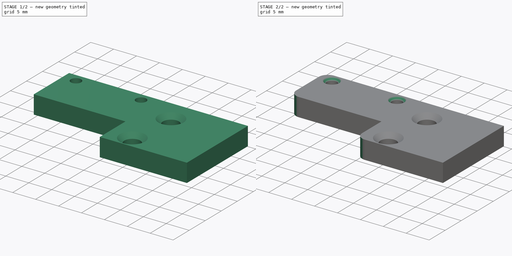
[diagram: build sequence overview — one tinted view per stage of 2, left to right]
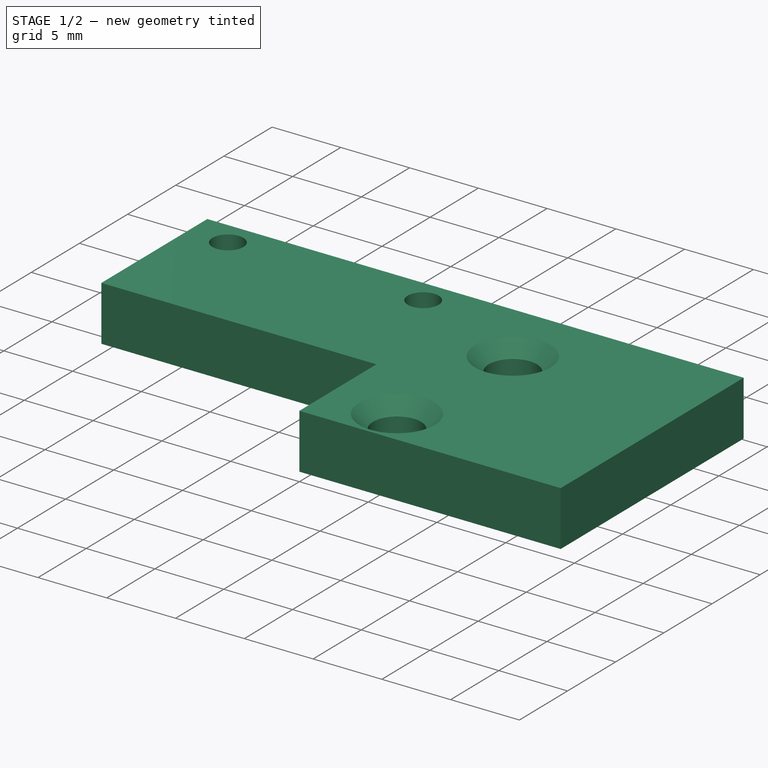
[diagram: stage 1 of 2 — iso view after this stage's code; geometry added in this stage tinted green]
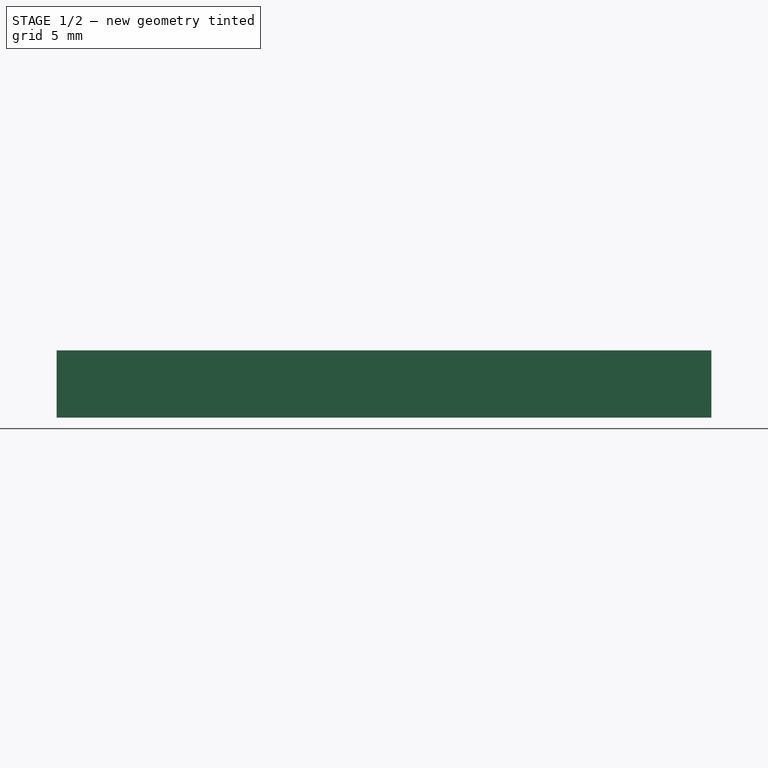
[diagram: stage 1 of 2 — front view after this stage's code; geometry added in this stage tinted green]
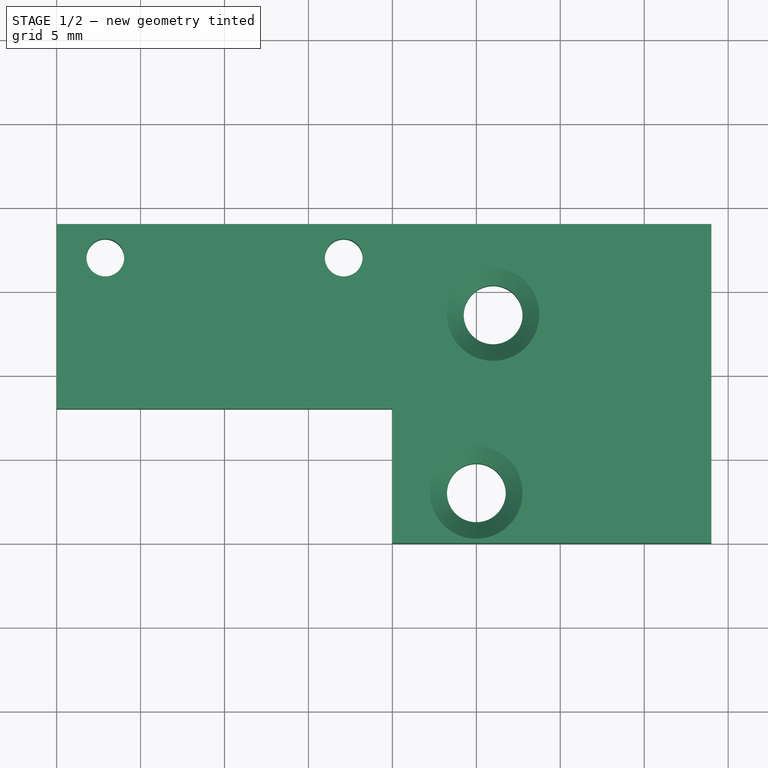
[diagram: stage 1 of 2 — top view after this stage's code; geometry added in this stage tinted green]
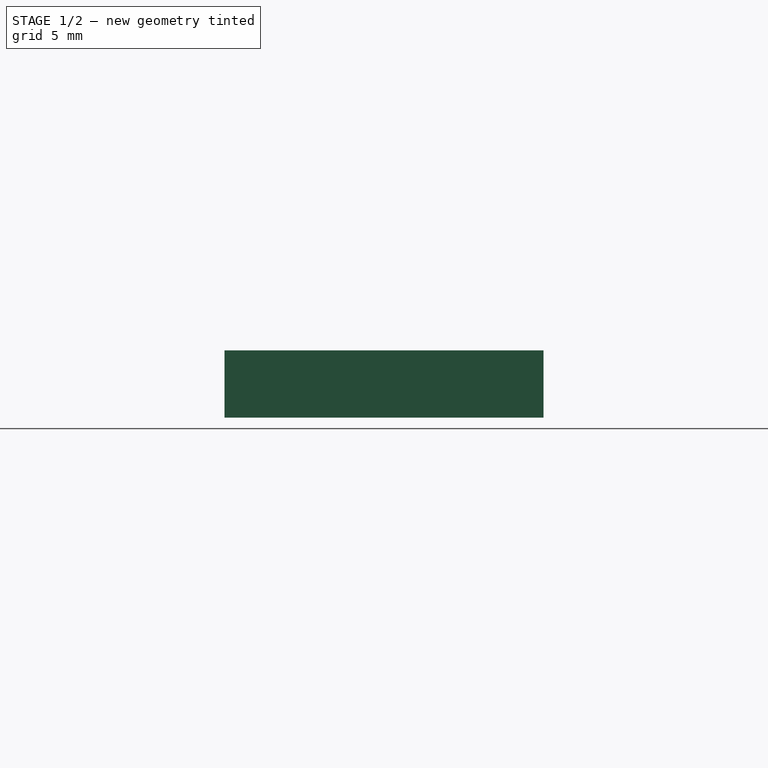
[diagram: stage 1 of 2 — right view after this stage's code; geometry added in this stage tinted green]
FCSTD DOCUMENT  (FreeCAD 0.18R16146 (Git))
Label: escSwitchMount
License: All rights reserved
LicenseURL: http://en.wikipedia.org/wiki/All_rights_reserved
objects: PartDesign::Chamfer×2, Sketcher::SketchObject×1, PartDesign::Pad×1, PartDesign::Fillet×1, PartDesign::Body×1
note: 7 computed .brp shape members not serialized (recipe doc carries the construction recipe); baked Part::Feature solids carry a one-line shape summary decoded from their .brp

FEATURE [Sketcher::SketchObject] Sketch
  MapMode = 5
  Support = -> [XY_Plane]
  sketch-geometry (13):
    g0: LineSegment StartX=0 StartY=0 StartZ=0 EndX=19 EndY=0 EndZ=0
    g1: LineSegment StartX=19 StartY=0 StartZ=0 EndX=19 EndY=19 EndZ=0
    g2: LineSegment StartX=19 StartY=19 StartZ=0 EndX=0 EndY=19 EndZ=0
    g3: LineSegment StartX=0 StartY=8 StartZ=0 EndX=0 EndY=0 EndZ=0
    g4: Circle CenterX=5 CenterY=3 CenterZ=0 NormalX=0 NormalY=0 NormalZ=1 AngleXU=0 Radius=1.75
    g5: Circle CenterX=6 CenterY=13.6 CenterZ=0 NormalX=0 NormalY=0 NormalZ=1 AngleXU=0 Radius=1.75
    g6: LineSegment StartX=0 StartY=19 StartZ=0 EndX=-20 EndY=19 EndZ=0
    g7: LineSegment StartX=-20 StartY=19 StartZ=0 EndX=-20 EndY=8 EndZ=0
    g8: LineSegment StartX=-20 StartY=8 StartZ=0 EndX=0 EndY=8 EndZ=0
    g9: LineSegment [constr] StartX=-10 StartY=19 StartZ=0 EndX=-10 EndY=8 EndZ=0
    g10: LineSegment [constr] StartX=-20 StartY=17 StartZ=0 EndX=0 EndY=17 EndZ=0
    g11: Circle CenterX=-2.9 CenterY=17 CenterZ=0 NormalX=0 NormalY=0 NormalZ=1 AngleXU=0 Radius=1.125
    g12: Circle CenterX=-17.1 CenterY=17 CenterZ=0 NormalX=0 NormalY=0 NormalZ=1 AngleXU=0 Radius=1.125
  constraints (38):
    c: Coincident(g0,g1)
    c: Coincident(g1,g2)
    c: Coincident(g3,g0)
    c: Horizontal(g0)
    c: Horizontal(g2)
    c: Vertical(g1)
    c: Vertical(g3)
    c: Coincident(g0,g-1)
    c: Distance(g2) = 19
    c: Distance(g1) = 19
    c: Radius(g4) = 1.75
    c: Distance(g4,g1) = 14
    c: Distance(g4,g0) = 3
    c: Equal(g4,g5) = 1.75
    c: Distance(g5,g2) = 5.4
    c: Distance(g5,g1) = 13
    c: Coincident(g6,g7)
    c: Coincident(g7,g8)
    c: Horizontal(g6)
    c: Horizontal(g8)
    c: Vertical(g7)
    c: Coincident(g6,g2)
    c: Distance(g7) = 11
    c: PointOnObject(g2,g-2)
    c: Coincident(g8,g3)
    c: Distance(g6) = 20
    c: PointOnObject(g9,g8)
    c: Vertical(g9)
    c: Symmetric(g6,g2,g9)
    c: PointOnObject(g10,g-2)
    c: Horizontal(g10)
    c: PointOnObject(g10,g7)
    c: Distance(g9,g10) = 2
    c: PointOnObject(g11,g10)
    c: Radius(g11) = 1.125
    c: Equal(g11,g12) = 1.125
    c: Distance(g12,g11) = 14.2
    c: Symmetric(g12,g11,g9)
FEATURE [PartDesign::Pad] Pad
  Length = 4
  Length2 = 100
  Profile = -> Sketch
  Type = 0
FEATURE [PartDesign::Chamfer] Chamfer
  Base = -> Pad [Edge24,Edge27]
  BaseFeature = -> Pad
  Size = 1
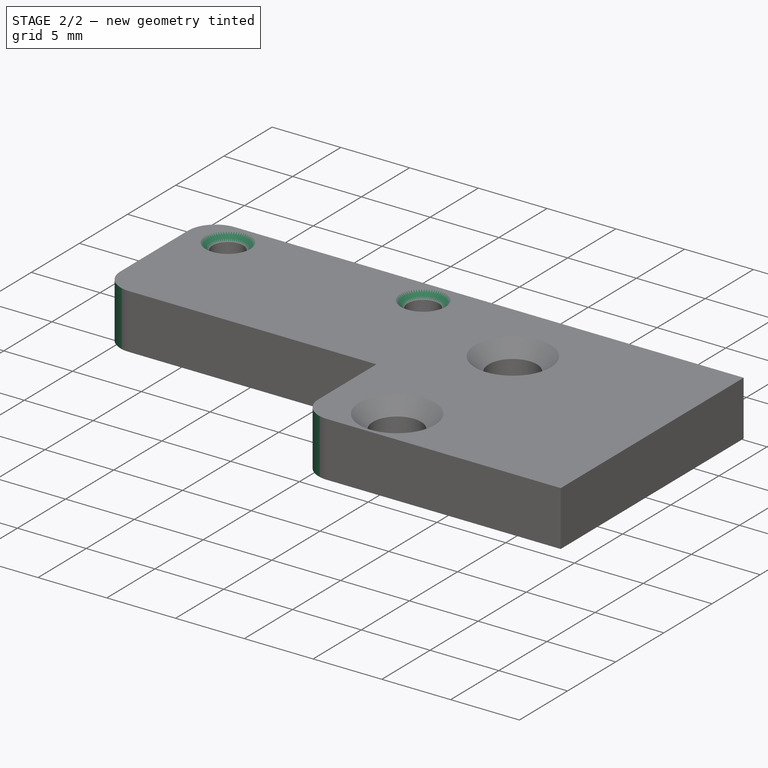
[diagram: stage 2 of 2 — iso view after this stage's code; geometry added in this stage tinted green]
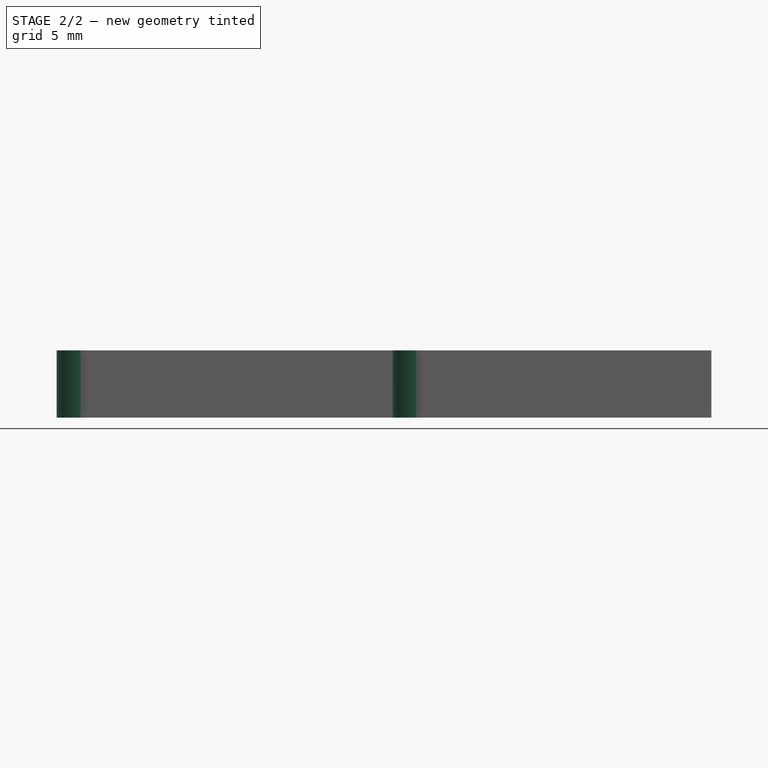
[diagram: stage 2 of 2 — front view after this stage's code; geometry added in this stage tinted green]
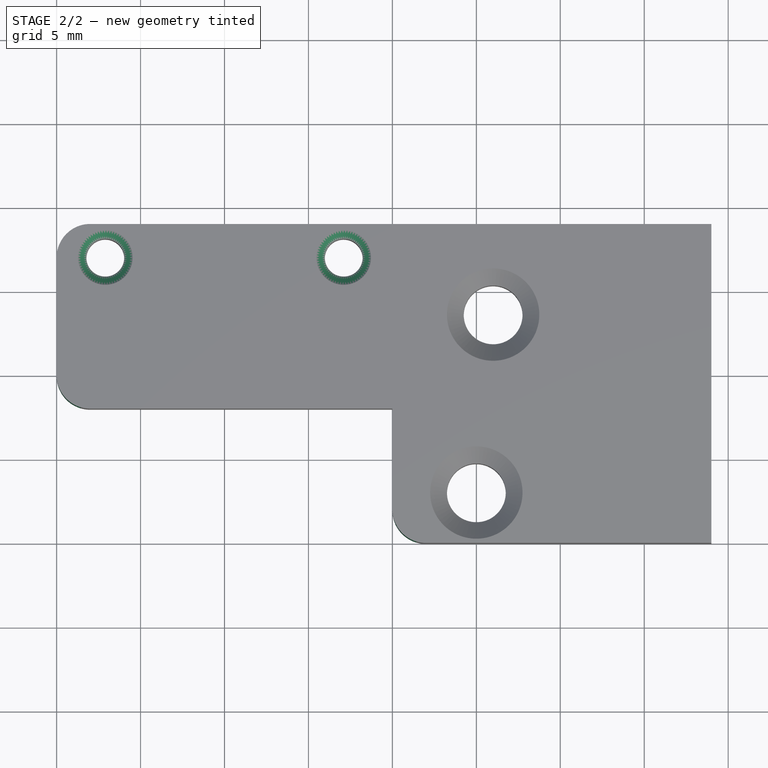
[diagram: stage 2 of 2 — top view after this stage's code; geometry added in this stage tinted green]
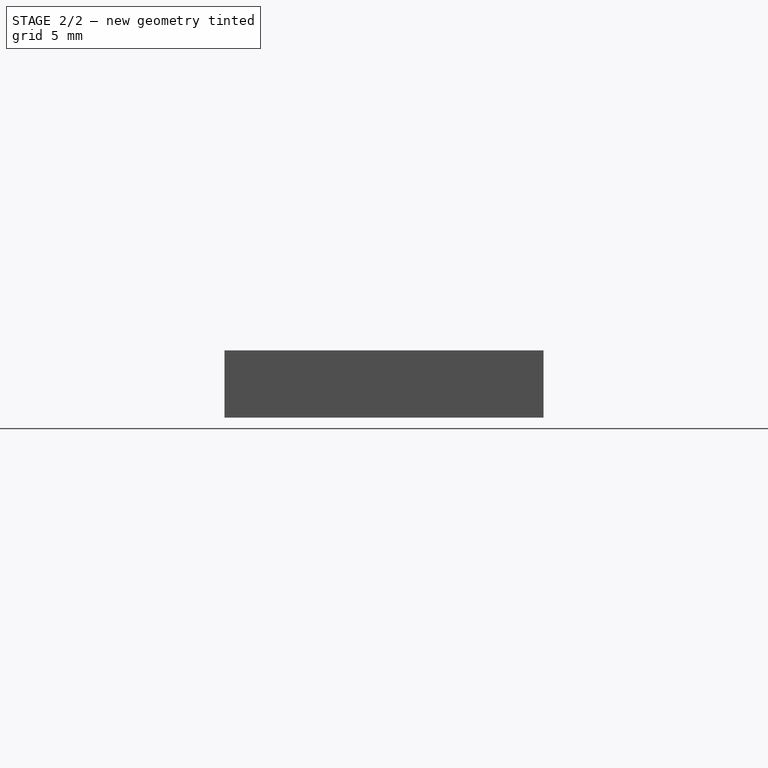
[diagram: stage 2 of 2 — right view after this stage's code; geometry added in this stage tinted green]
FEATURE [PartDesign::Chamfer] Chamfer001
  Base = -> Chamfer [Edge24,Edge23]
  BaseFeature = -> Chamfer
  Size = 0.5
FEATURE [PartDesign::Fillet] Fillet
  Base = -> Chamfer001 [Edge16,Edge25,Edge23]
  BaseFeature = -> Chamfer001
  Radius = 2
FEATURE [PartDesign::Body] Body
  Group = -> [Sketch,Pad,Chamfer,Chamfer001,Fillet]
  Origin = -> Origin
  Tip = -> Fillet
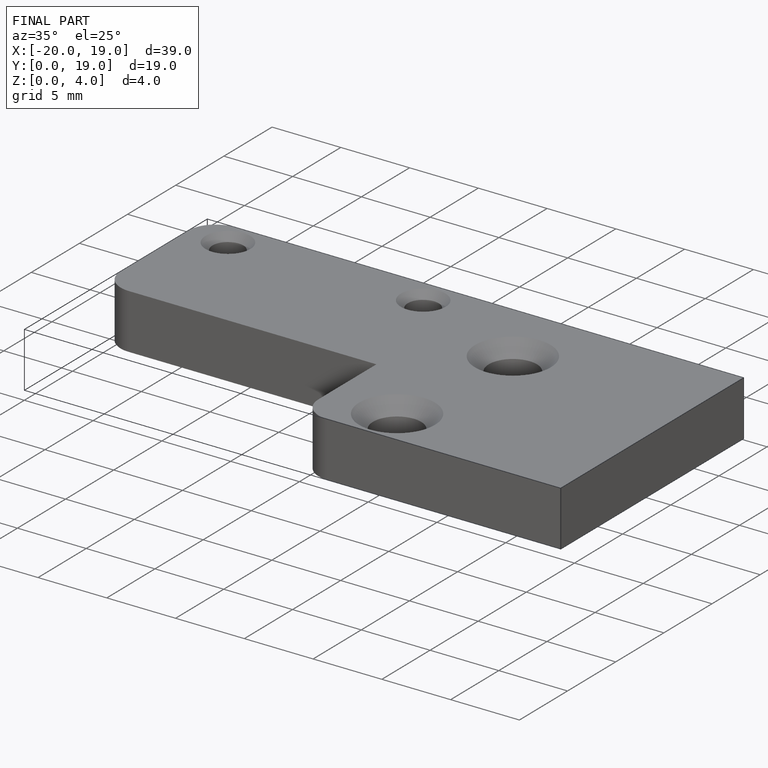
[diagram: finished part — iso view with bounding-box wireframe]
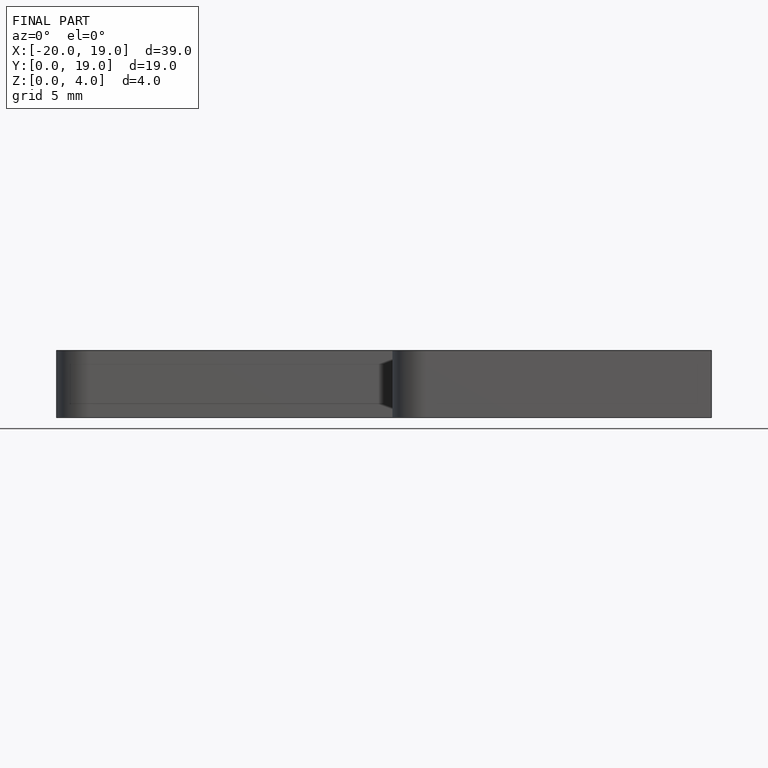
[diagram: finished part — front view with bounding-box wireframe]
